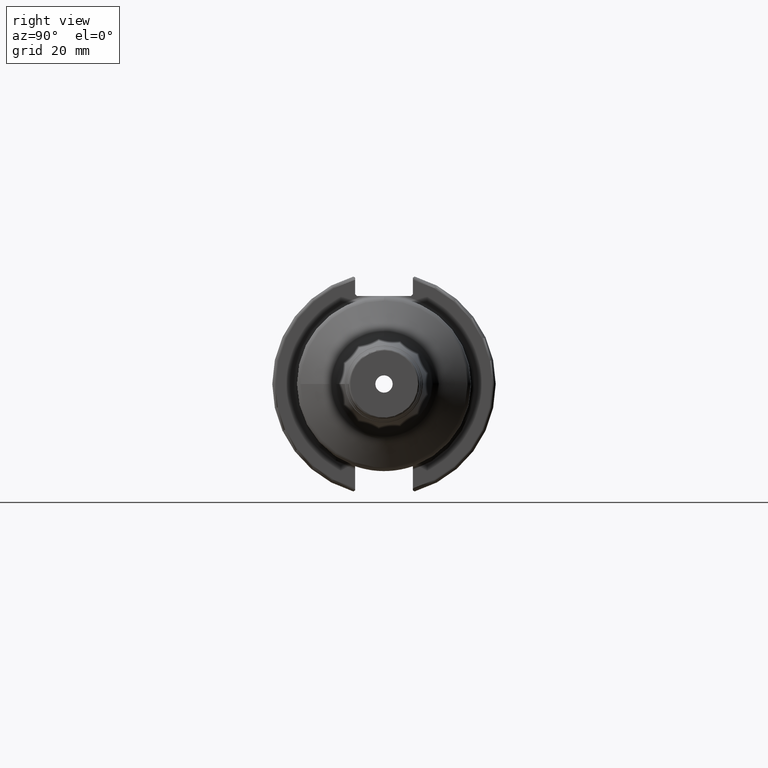
[diagram: clean part render]
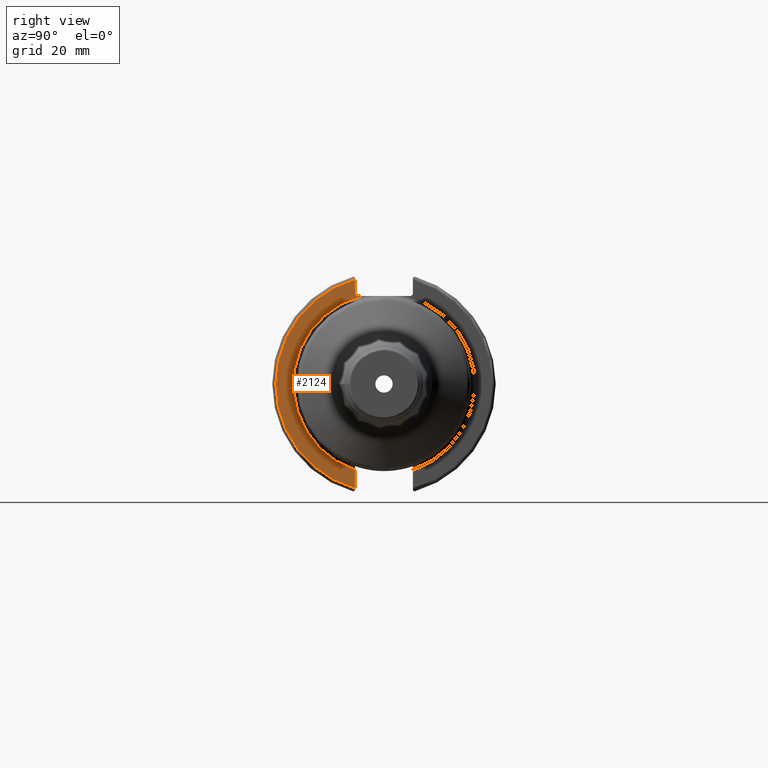
[diagram: same view with one face highlighted and labeled with its STEP entity id]
A machine part, right view. The second image highlights one B-rep face of the part: STEP entity #2124.
In plain terms, the highlighted planar face has unit normal (1, 0, 0).
Its self-contained STEP definition (entity closure, byte-faithful):
#50=PLANE('',#2345);
#213=FACE_OUTER_BOUND('',#324,.T.);
#324=EDGE_LOOP('',(#1602,#1603,#1604,#1605,#1606,#1607));
#432=LINE('',#3585,#533);
#433=LINE('',#3587,#534);
#434=LINE('',#3589,#535);
#435=LINE('',#3592,#536);
#533=VECTOR('',#2792,10.);
#534=VECTOR('',#2793,10.);
#535=VECTOR('',#2794,10.);
#536=VECTOR('',#2797,10.);
#707=CIRCLE('',#2343,25.75);
#709=CIRCLE('',#2346,30.75);
#878=VERTEX_POINT('',#3547);
#880=VERTEX_POINT('',#3559);
#882=VERTEX_POINT('',#3584);
#883=VERTEX_POINT('',#3586);
#884=VERTEX_POINT('',#3588);
#885=VERTEX_POINT('',#3590);
#1151=EDGE_CURVE('',#878,#880,#707,.T.);
#1155=EDGE_CURVE('',#878,#882,#432,.T.);
#1156=EDGE_CURVE('',#883,#882,#433,.T.);
#1157=EDGE_CURVE('',#883,#884,#434,.T.);
#1158=EDGE_CURVE('',#885,#884,#709,.T.);
#1159=EDGE_CURVE('',#885,#880,#435,.T.);
#1602=ORIENTED_EDGE('',*,*,#1151,.F.);
#1603=ORIENTED_EDGE('',*,*,#1155,.T.);
#1604=ORIENTED_EDGE('',*,*,#1156,.F.);
#1605=ORIENTED_EDGE('',*,*,#1157,.T.);
#1606=ORIENTED_EDGE('',*,*,#1158,.F.);
#1607=ORIENTED_EDGE('',*,*,#1159,.T.);
#2124=ADVANCED_FACE('',(#213),#50,.T.);
#2343=AXIS2_PLACEMENT_3D('',#3560,#2786,#2787);
#2345=AXIS2_PLACEMENT_3D('',#3583,#2790,#2791);
#2346=AXIS2_PLACEMENT_3D('',#3591,#2795,#2796);
#2786=DIRECTION('center_axis',(1.,0.,0.));
#2787=DIRECTION('ref_axis',(0.,6.12323399573677E-17,1.));
#2790=DIRECTION('center_axis',(1.,0.,0.));
#2791=DIRECTION('ref_axis',(0.,0.,-1.));
#2792=DIRECTION('',(0.,-1.,0.));
#2793=DIRECTION('',(0.,0.70710678118655,-0.707106781186545));
#2794=DIRECTION('',(0.,0.,1.));
#2795=DIRECTION('center_axis',(-1.,0.,0.));
#2796=DIRECTION('ref_axis',(0.,-1.,1.60812264967664E-16));
#2797=DIRECTION('',(0.,0.,1.));
#3547=CARTESIAN_POINT('',(19.05,-6.16948133962654,25.));
#3559=CARTESIAN_POINT('',(19.05,-8.19,-24.4128326910254));
#3560=CARTESIAN_POINT('Origin',(19.05,0.,0.));
#3583=CARTESIAN_POINT('Origin',(19.05,0.,0.));
#3584=CARTESIAN_POINT('',(19.05,-7.69,25.));
#3585=CARTESIAN_POINT('',(19.05,0.,25.));
#3586=CARTESIAN_POINT('',(19.05,-8.19,25.5));
#3587=CARTESIAN_POINT('',(19.05,0.357500000000014,16.9525));
#3588=CARTESIAN_POINT('',(19.05,-8.19,29.6392712461019));
#3589=CARTESIAN_POINT('',(19.05,-8.19,12.5));
#3590=CARTESIAN_POINT('',(19.05,-8.19,-29.6392712461019));
#3591=CARTESIAN_POINT('Origin',(19.05,0.,0.));
#3592=CARTESIAN_POINT('',(19.05,-8.19,-11.3));